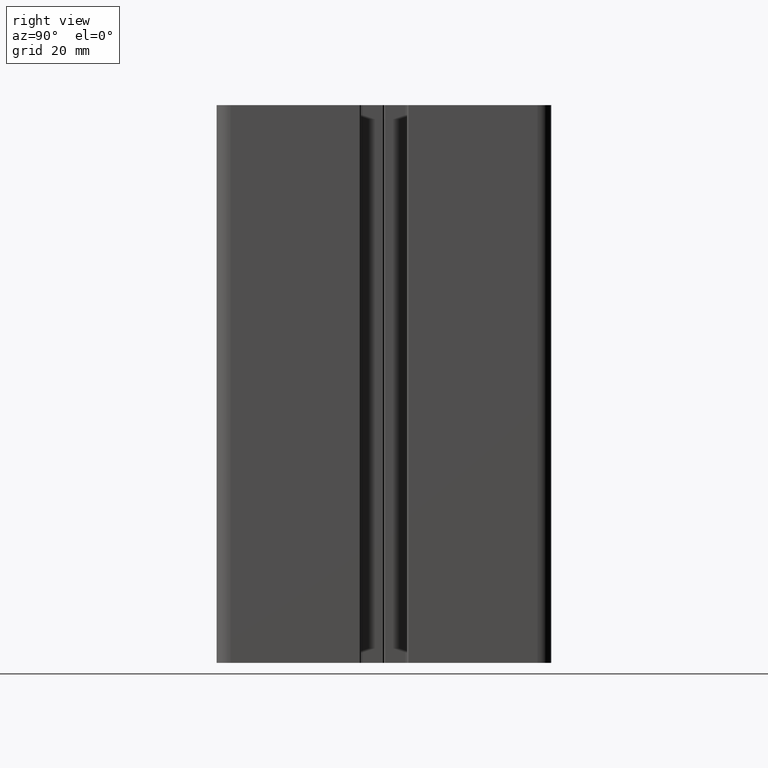
[diagram: clean part render]
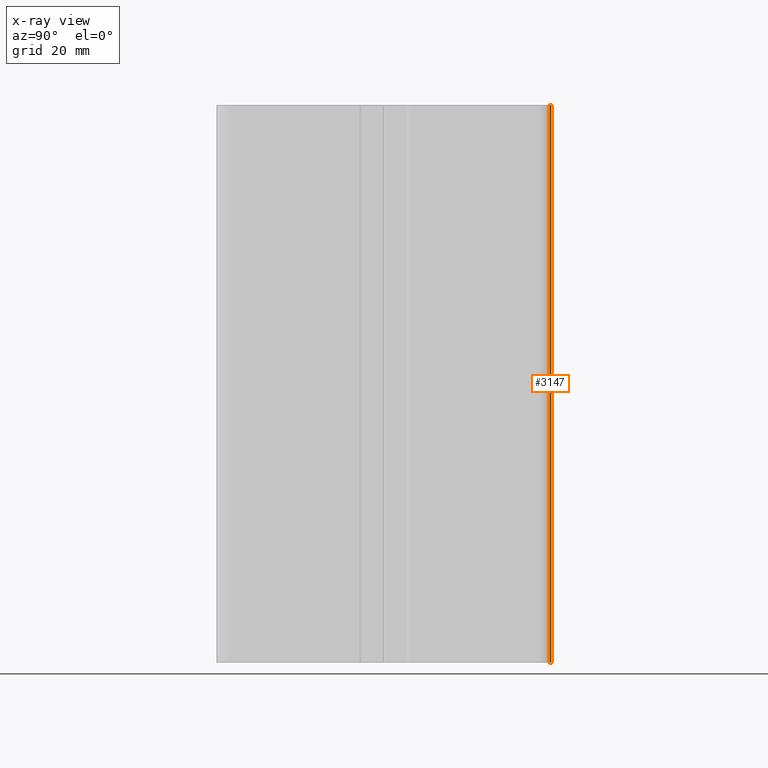
[diagram: x-ray — body ghosted, one internal face saturated and labeled with its STEP entity id]
A machine part, right view, then the same camera in x-ray: the body is ghosted and one INTERNAL B-rep face — a face not visible from any outside direction — is saturated and labeled: STEP entity #3147.
In plain terms, the highlighted cylindrical surface (edge-blend (fillet) strip) has radius 0.3 mm, axis along (0, 0, 1).
Its self-contained STEP definition (entity closure, byte-faithful):
#144=CIRCLE('',#3419,0.300000000000038);
#145=CIRCLE('',#3420,0.300000000000038);
#243=CYLINDRICAL_SURFACE('',#3418,0.300000000000038);
#372=FACE_OUTER_BOUND('',#532,.T.);
#532=EDGE_LOOP('',(#2444,#2445,#2446,#2447));
#812=LINE('',#5102,#1128);
#813=LINE('',#5108,#1129);
#1128=VECTOR('',#4160,100.);
#1129=VECTOR('',#4167,100.);
#1448=VERTEX_POINT('',#5098);
#1449=VERTEX_POINT('',#5100);
#1450=VERTEX_POINT('',#5104);
#1451=VERTEX_POINT('',#5106);
#1868=EDGE_CURVE('',#1448,#1449,#812,.T.);
#1869=EDGE_CURVE('',#1448,#1450,#144,.T.);
#1870=EDGE_CURVE('',#1451,#1449,#145,.T.);
#1871=EDGE_CURVE('',#1450,#1451,#813,.T.);
#2444=ORIENTED_EDGE('',*,*,#1869,.F.);
#2445=ORIENTED_EDGE('',*,*,#1868,.T.);
#2446=ORIENTED_EDGE('',*,*,#1870,.F.);
#2447=ORIENTED_EDGE('',*,*,#1871,.F.);
#3147=ADVANCED_FACE('',(#372),#243,.T.);
#3418=AXIS2_PLACEMENT_3D('',#5103,#4161,#4162);
#3419=AXIS2_PLACEMENT_3D('',#5105,#4163,#4164);
#3420=AXIS2_PLACEMENT_3D('',#5107,#4165,#4166);
#4160=DIRECTION('',(0.,0.,1.));
#4161=DIRECTION('center_axis',(0.,0.,1.));
#4162=DIRECTION('ref_axis',(-1.,0.,0.));
#4163=DIRECTION('center_axis',(0.,0.,-1.));
#4164=DIRECTION('ref_axis',(-1.,0.,0.));
#4165=DIRECTION('center_axis',(0.,0.,1.));
#4166=DIRECTION('ref_axis',(-1.,0.,0.));
#4167=DIRECTION('',(0.,0.,1.));
#5098=CARTESIAN_POINT('',(-4.45000000000004,30.,0.));
#5100=CARTESIAN_POINT('',(-4.45000000000004,30.,100.));
#5102=CARTESIAN_POINT('',(-4.45000000000004,30.,0.));
#5103=CARTESIAN_POINT('Origin',(-4.45000000000007,29.6999999999999,0.));
#5104=CARTESIAN_POINT('',(-4.15000000000003,29.6999999999999,0.));
#5105=CARTESIAN_POINT('Origin',(-4.45000000000007,29.6999999999999,0.));
#5106=CARTESIAN_POINT('',(-4.15000000000003,29.6999999999999,100.));
#5107=CARTESIAN_POINT('Origin',(-4.45000000000007,29.6999999999999,100.));
#5108=CARTESIAN_POINT('',(-4.15000000000003,29.6999999999999,0.));